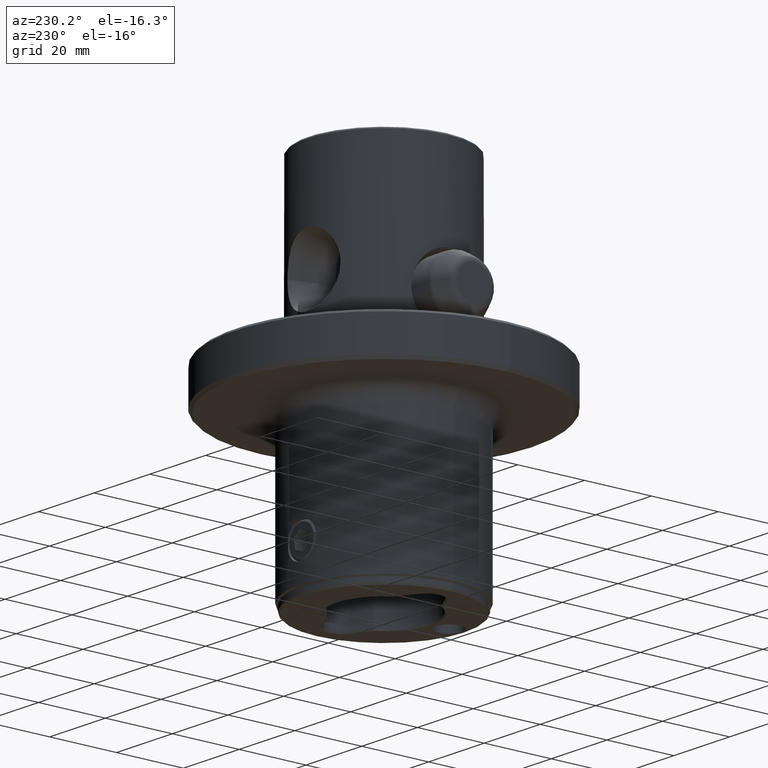
[diagram: clean part render]
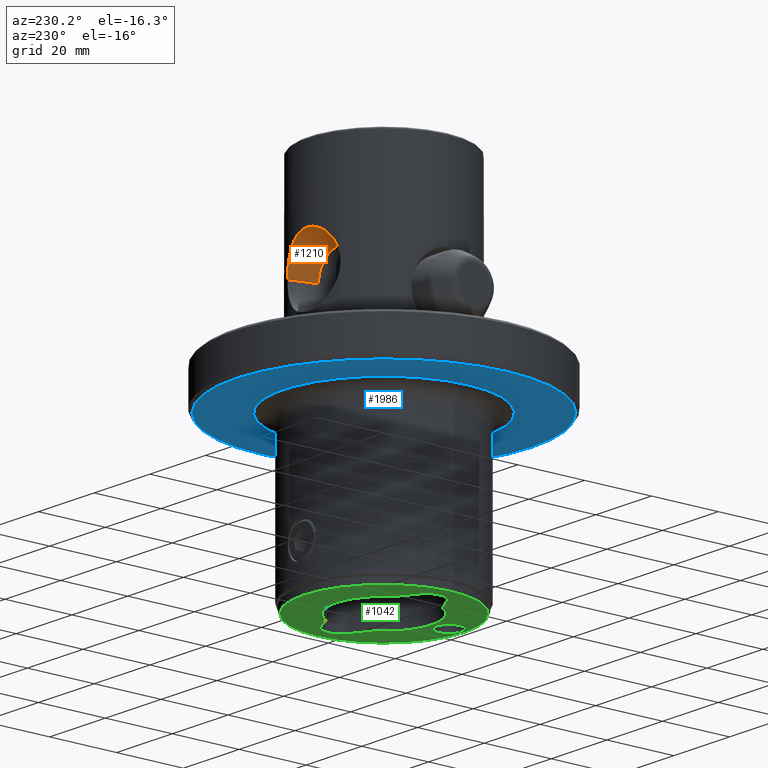
[diagram: same view with three faces highlighted in distinct colors, each labeled with its STEP entity id]
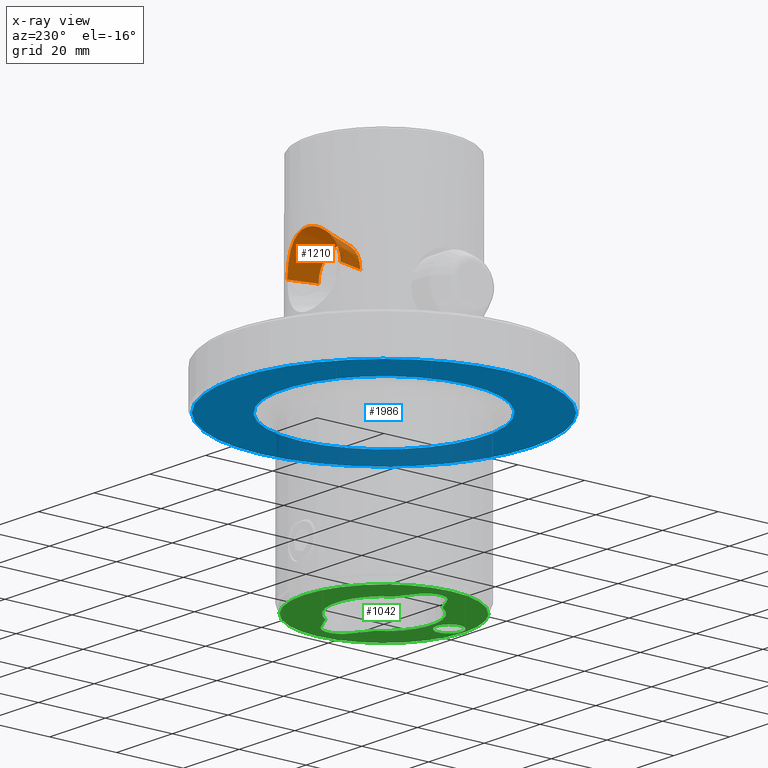
[diagram: x-ray of the same camera — body ghosted, the three highlighted faces saturated]
A machine part, auxiliary view with three faces highlighted in distinct colors.
The next image is the same camera in x-ray (body ghosted, the three faces saturated) — at least one of them is partly hidden behind the body in this view.
Their STEP definitions:

[orange] entity #1210 — the highlighted conical surface has half-angle 15 deg.
#832=EDGE_CURVE('NONE',#1472,#2162,#2392,.T.);
#1040=EDGE_CURVE('NONE',#1908,#1180,#2624,.T.);
#1180=VERTEX_POINT('NONE',#2778);
#1210=ADVANCED_FACE('NONE',(#2812),#2813,.F.);
#1350=EDGE_CURVE('NONE',#1908,#1472,#2963,.T.);
#1472=VERTEX_POINT('NONE',#3102);
#1804=EDGE_CURVE('NONE',#2162,#1180,#3486,.T.);
#1908=VERTEX_POINT('NONE',#3600);
#2162=VERTEX_POINT('NONE',#3876);
#2392=LINE('',#4134,#4135);
#2624=LINE('',#4564,#4565);
#2778=CARTESIAN_POINT('',(-9.52900098130766,20.9331827560512,18.2));
#2812=FACE_OUTER_BOUND('',#4866,.T.);
#2813=CONICAL_SURFACE('',#4867,11.9584473397443,0.261799387799143);
#2963=CIRCLE('',#5143,7.49999999999999);
#3102=CARTESIAN_POINT('',(7.49999999999999,13.3608480052036,18.2));
#3486=B_SPLINE_CURVE_WITH_KNOTS('',3,(#6012,#6013,#6014,#6015,#6016,#6017,#6018,#6019,#6020,#6021,#6022,#6023,#6024,#6025,#6026,#6027,#6028,#6029,#6030,#6031,#6032,#6033,#6034,#6035,#6036,#6037,#6038,#6039,#6040,#6041,#6042,#6043,#6044,#6045,#6046,#6047,#6048,#6049,#6050,#6051,#6052,#6053,#6054,#6055,#6056,#6057,#6058,#6059,#6060),.UNSPECIFIED.,.F.,.F.,(4,2,2,2,2,2,2,2,2,2,2,2,2,2,2,2,2,2,2,2,2,2,1,2,4),(0.038432256235785,0.0393961304792755,0.040360004722766,0.042287753209747,0.0432516274532375,0.044215501696728,0.0461432501837089,0.0471071244271994,0.0480709986706899,0.0490348729141804,0.0499987471576709,0.0519264956446518,0.0528903698881423,0.0538542441316328,0.0557819926186138,0.0567458668621043,0.0577097411055948,0.0596374895925758,0.0615652380795567,0.0634929865665377,0.0654207350535187,0.0663846092970092,0.0673484835404997,0.0683123577839901,0.0692762320274806),.UNSPECIFIED.);
#3600=CARTESIAN_POINT('',(-7.49999999999999,13.3608480052036,18.2));
#3876=CARTESIAN_POINT('',(9.52900098130766,20.9331827560512,18.2));
#4134=CARTESIAN_POINT('',(11.9584473397443,30.0,18.2));
#4135=VECTOR('',#7234,1000.0);
#4564=CARTESIAN_POINT('',(-11.9584473397443,30.0,18.2));
#4565=VECTOR('',#7527,1000.0);
#4866=EDGE_LOOP('',(#7762,#7763,#7764,#7765));
#4867=AXIS2_PLACEMENT_3D('',#7766,#7767,#7768);
#5143=AXIS2_PLACEMENT_3D('',#7922,#7923,#7924);
#6012=CARTESIAN_POINT('',(9.52900098130766,20.9331827560512,18.2));
#6013=CARTESIAN_POINT('',(9.52900098130766,20.9331827560512,18.523021912486));
#6014=CARTESIAN_POINT('',(9.5143973507356,20.9398495810759,18.8467940023031));
#6015=CARTESIAN_POINT('',(9.45514866864394,20.9666692891267,19.4958770330346));
#6016=CARTESIAN_POINT('',(9.4103327317864,20.9868955445611,19.8207142469026));
#6017=CARTESIAN_POINT('',(9.23383647188968,21.0654421006394,20.7755888764256));
#6018=CARTESIAN_POINT('',(9.06001217922808,21.1418583147805,21.3935884998345));
#6019=CARTESIAN_POINT('',(8.71515481932328,21.2852431251731,22.2936187358283));
#6020=CARTESIAN_POINT('',(8.58529204329732,21.3381391953795,22.5905923639094));
#6021=CARTESIAN_POINT('',(8.30056465382677,21.4505023301958,23.1665278014875));
#6022=CARTESIAN_POINT('',(8.14593234649985,21.5098905684617,23.445484063932));
#6023=CARTESIAN_POINT('',(7.64571322268232,21.6949186115159,24.2562986712062));
#6024=CARTESIAN_POINT('',(7.26422264806696,21.8274307226796,24.7623820690369));
#6025=CARTESIAN_POINT('',(6.61466835165081,22.0294706758058,25.4687400063865));
#6026=CARTESIAN_POINT('',(6.38675674178964,22.0968237908812,25.6933952952588));
#6027=CARTESIAN_POINT('',(5.91358471799358,22.2281308055167,26.1161138157577));
#6028=CARTESIAN_POINT('',(5.66752288909383,22.2923400742483,26.3150625618722));
#6029=CARTESIAN_POINT('',(5.1560222594097,22.4161699704658,26.6881155552423));
#6030=CARTESIAN_POINT('',(4.89058635965902,22.4757944976459,26.8622224738285));
#6031=CARTESIAN_POINT('',(4.33927621324933,22.5887107907207,27.1847180328996));
#6032=CARTESIAN_POINT('',(4.05152876431355,22.642303673219,27.3339192009342));
#6033=CARTESIAN_POINT('',(3.16955505241879,22.7883550218743,27.7337587681267));
#6034=CARTESIAN_POINT('',(2.56148919532557,22.8656266307134,27.9360635418887));
#6035=CARTESIAN_POINT('',(1.61839964617396,22.9451587402115,28.142388622104));
#6036=CARTESIAN_POINT('',(1.29883643646544,22.9656022465041,28.1948519125199));
#6037=CARTESIAN_POINT('',(0.648689135425446,22.9931525685127,28.2653875192109));
#6038=CARTESIAN_POINT('',(0.321318452824593,23.0000413121776,28.2829082999875));
#6039=CARTESIAN_POINT('',(-0.651467841542125,22.999916810533,28.2825909377002));
#6040=CARTESIAN_POINT('',(-1.29423109821104,22.9724530723112,28.2131925591272));
#6041=CARTESIAN_POINT('',(-2.24971261631084,22.8919407590923,28.0043306040548));
#6042=CARTESIAN_POINT('',(-2.56449401658918,22.8586627752685,27.9174047827039));
#6043=CARTESIAN_POINT('',(-3.17641653937835,22.7816915834389,27.7132038688996));
#6044=CARTESIAN_POINT('',(-3.47521520137169,22.7378635471341,27.5955826130132));
#6045=CARTESIAN_POINT('',(-4.35094018521888,22.5924668206106,27.1973748912731));
#6046=CARTESIAN_POINT('',(-4.91176566385718,22.4756493836206,26.8677212201833));
#6047=CARTESIAN_POINT('',(-5.94066451937262,22.2258579636504,26.1143485630644));
#6048=CARTESIAN_POINT('',(-6.41319872527364,22.092443922019,25.6898529055464));
#6049=CARTESIAN_POINT('',(-7.27811126977178,21.8227929624562,24.7451853534257));
#6050=CARTESIAN_POINT('',(-7.65866257205373,21.69029614125,24.2374800902021));
#6051=CARTESIAN_POINT('',(-8.31924253842872,21.4456117346766,23.1623260165245));
#6052=CARTESIAN_POINT('',(-8.60037874023825,21.3329757737952,22.5935875050743));
#6053=CARTESIAN_POINT('',(-8.94627485612876,21.1891424710585,21.6902165684792));
#6054=CARTESIAN_POINT('',(-9.04823901188483,21.1456456675507,21.3816554765896));
#6055=CARTESIAN_POINT('',(-9.22197996095423,21.0704543262256,20.7617939087606));
#6056=CARTESIAN_POINT('',(-9.36687505998082,21.0065080341782,20.1358475703088));
#6057=CARTESIAN_POINT('',(-9.45484935370242,20.9668041173749,19.4977324141215));
#6058=CARTESIAN_POINT('',(-9.51392378513794,20.9400645989491,18.8533871613536));
#6059=CARTESIAN_POINT('',(-9.52900098130766,20.9331827560512,18.5266777119001));
#6060=CARTESIAN_POINT('',(-9.52900098130766,20.9331827560512,18.2));
#7234=DIRECTION('',(0.258819045102515,0.96592582628907,0.0));
#7527=DIRECTION('',(-0.258819045102515,0.96592582628907,-3.1695144712278E-017));
#7762=ORIENTED_EDGE('',*,*,#1350,.F.);
#7763=ORIENTED_EDGE('',*,*,#1040,.T.);
#7764=ORIENTED_EDGE('',*,*,#1804,.F.);
#7765=ORIENTED_EDGE('',*,*,#832,.F.);
#7766=CARTESIAN_POINT('',(0.0,30.0,18.2));
#7767=DIRECTION('',(-0.0,1.0,-0.0));
#7768=DIRECTION('',(1.0,0.0,0.0));
#7922=CARTESIAN_POINT('',(0.0,13.3608480052036,18.2));
#7923=DIRECTION('',(-0.0,1.0,0.0));
#7924=DIRECTION('',(1.0,0.0,0.0));

[blue] entity #1986 — the highlighted planar face has unit normal (0, 0, 1).
#838=EDGE_CURVE('NONE',#1194,#1718,#2399,.T.);
#970=VERTEX_POINT('NONE',#2543);
#1194=VERTEX_POINT('NONE',#2792);
#1588=VERTEX_POINT('NONE',#3233);
#1598=EDGE_CURVE('NONE',#1588,#970,#3243,.T.);
#1718=VERTEX_POINT('NONE',#3385);
#1986=ADVANCED_FACE('NONE',(#3686,#3687),#3688,.F.);
#2096=EDGE_CURVE('NONE',#970,#1588,#3807,.T.);
#2152=EDGE_CURVE('NONE',#1718,#1194,#3866,.T.);
#2399=CIRCLE('',#4143,44.15);
#2543=CARTESIAN_POINT('',(-30.0,3.67381906146713E-015,-11.9));
#2792=CARTESIAN_POINT('',(-44.15,5.45868282216325E-015,-11.9));
#3233=CARTESIAN_POINT('',(30.0,0.0,-11.9));
#3243=CIRCLE('',#5586,30.0);
#3385=CARTESIAN_POINT('',(44.15,0.0,-11.9));
#3686=FACE_OUTER_BOUND('',#6344,.T.);
#3687=FACE_BOUND('',#6345,.T.);
#3688=PLANE('',#6346);
#3807=CIRCLE('',#6689,30.0);
#3866=CIRCLE('',#6823,44.15);
#4143=AXIS2_PLACEMENT_3D('',#7243,#7244,#7245);
#5586=AXIS2_PLACEMENT_3D('',#8291,#8292,#8293);
#6344=EDGE_LOOP('',(#8869,#8870));
#6345=EDGE_LOOP('',(#8871,#8872));
#6346=AXIS2_PLACEMENT_3D('',#8873,#8874,#8875);
#6689=AXIS2_PLACEMENT_3D('',#9010,#9011,#9012);
#6823=AXIS2_PLACEMENT_3D('',#9062,#9063,#9064);
#7243=CARTESIAN_POINT('',(0.0,0.0,-11.9));
#7244=DIRECTION('',(0.0,0.0,-1.0));
#7245=DIRECTION('',(1.0,0.0,0.0));
#8291=CARTESIAN_POINT('',(0.0,0.0,-11.9));
#8292=DIRECTION('',(0.0,0.0,1.0));
#8293=DIRECTION('',(1.0,0.0,0.0));
#8869=ORIENTED_EDGE('',*,*,#2152,.T.);
#8870=ORIENTED_EDGE('',*,*,#838,.T.);
#8871=ORIENTED_EDGE('',*,*,#1598,.T.);
#8872=ORIENTED_EDGE('',*,*,#2096,.T.);
#8873=CARTESIAN_POINT('',(0.0,45.15,-11.9));
#8874=DIRECTION('',(0.0,0.0,1.0));
#8875=DIRECTION('',(1.0,0.0,0.0));
#9010=CARTESIAN_POINT('',(0.0,0.0,-11.9));
#9011=DIRECTION('',(0.0,0.0,1.0));
#9012=DIRECTION('',(1.0,0.0,0.0));
#9062=CARTESIAN_POINT('',(0.0,0.0,-11.9));
#9063=DIRECTION('',(0.0,0.0,-1.0));
#9064=DIRECTION('',(1.0,0.0,0.0));

[green] entity #1042 — the highlighted planar face has unit normal (0, 0, -1).
#854=VERTEX_POINT('NONE',#2416);
#878=EDGE_CURVE('NONE',#1806,#886,#2443,.T.);
#886=VERTEX_POINT('NONE',#2451);
#912=VERTEX_POINT('NONE',#2478);
#968=VERTEX_POINT('NONE',#2541);
#1042=ADVANCED_FACE('NONE',(#2626,#2627,#2628),#2629,.T.);
#1126=VERTEX_POINT('NONE',#2722);
#1168=VERTEX_POINT('NONE',#2765);
#1172=EDGE_CURVE('NONE',#1126,#1186,#2769,.T.);
#1186=VERTEX_POINT('NONE',#2784);
#1236=EDGE_CURVE('NONE',#1382,#968,#2840,.T.);
#1246=EDGE_CURVE('NONE',#2030,#1514,#2850,.T.);
#1250=VERTEX_POINT('NONE',#2854);
#1382=VERTEX_POINT('NONE',#2997);
#1416=EDGE_CURVE('NONE',#1250,#1934,#3036,.T.);
#1514=VERTEX_POINT('',#3150);
#1634=EDGE_CURVE('NONE',#854,#1168,#3287,.T.);
#1642=EDGE_CURVE('NONE',#912,#2030,#3295,.T.);
#1736=EDGE_CURVE('NONE',#1806,#1934,#3405,.T.);
#1806=VERTEX_POINT('NONE',#3488);
#1886=EDGE_CURVE('NONE',#1186,#1126,#3575,.T.);
#1934=VERTEX_POINT('NONE',#3630);
#1966=EDGE_CURVE('NONE',#1514,#1250,#3664,.T.);
#2028=VERTEX_POINT('NONE',#3731);
#2030=VERTEX_POINT('NONE',#3733);
#2254=EDGE_CURVE('NONE',#912,#2028,#3981,.T.);
#2284=EDGE_CURVE('NONE',#968,#1382,#4016,.T.);
#2324=EDGE_CURVE('NONE',#1168,#2028,#4061,.T.);
#2326=EDGE_CURVE('NONE',#886,#854,#4063,.T.);
#2416=CARTESIAN_POINT('',(-20.0,2.22044604925031E-014,-60.0));
#2443=LINE('',#4204,#4205);
#2451=CARTESIAN_POINT('',(-17.55,-4.24352447854373,-60.0));
#2478=CARTESIAN_POINT('',(12.2287488288569,7.31575027462881,-60.0));
#2541=CARTESIAN_POINT('',(-24.0,2.98309445721789E-014,-60.0));
#2626=FACE_OUTER_BOUND('',#4567,.T.);
#2627=FACE_BOUND('',#4568,.T.);
#2628=FACE_BOUND('',#4569,.T.);
#2629=PLANE('',#4570);
#2722=CARTESIAN_POINT('',(3.75,-19.5,-60.0));
#2765=CARTESIAN_POINT('',(-17.55,4.24352447854378,-60.0));
#2769=CIRCLE('',#4769,3.75);
#2784=CARTESIAN_POINT('',(-3.75,-19.5,-60.0));
#2840=CIRCLE('',#4968,24.0);
#2850=CIRCLE('',#4983,4.9);
#2854=CARTESIAN_POINT('',(17.55,-4.24352447854377,-60.0));
#2997=CARTESIAN_POINT('',(24.0,-2.66453525910038E-014,-60.0));
#3036=LINE('',#5241,#5242);
#3150=CARTESIAN_POINT('',(20.0,-2.28045176058761E-014,-60.0));
#3287=CIRCLE('',#5638,4.9);
#3295=LINE('',#5650,#5651);
#3405=CIRCLE('',#5807,14.25);
#3488=CARTESIAN_POINT('',(-12.2287488288569,-7.31575027462887,-60.0));
#3575=CIRCLE('',#6189,3.75);
#3630=CARTESIAN_POINT('',(12.2287488288568,-7.31575027462891,-60.0));
#3664=CIRCLE('',#6310,4.9);
#3731=CARTESIAN_POINT('',(-12.2287488288569,7.31575027462881,-60.0));
#3733=CARTESIAN_POINT('',(17.55,4.24352447854375,-60.0));
#3981=CIRCLE('',#7037,14.25);
#4016=CIRCLE('',#7119,24.0);
#4061=LINE('',#7176,#7177);
#4063=CIRCLE('',#7180,4.9);
#4204=CARTESIAN_POINT('',(-7.57949192431128,-9.99999999999999,-60.0));
#4205=VECTOR('',#7300,1000.0);
#4567=EDGE_LOOP('',(#7529,#7530));
#4568=EDGE_LOOP('',(#7531,#7532,#7533,#7534,#7535,#7536,#7537,#7538,#7539,#7540));
#4569=EDGE_LOOP('',(#7541,#7542));
#4570=AXIS2_PLACEMENT_3D('',#7543,#7544,#7545);
#4769=AXIS2_PLACEMENT_3D('',#7702,#7703,#7704);
#4968=AXIS2_PLACEMENT_3D('',#7787,#7788,#7789);
#4983=AXIS2_PLACEMENT_3D('',#7792,#7793,#7794);
#5241=CARTESIAN_POINT('',(17.55,-4.24352447854377,-60.0));
#5242=VECTOR('',#8020,1000.0);
#5638=AXIS2_PLACEMENT_3D('',#8369,#8370,#8371);
#5650=CARTESIAN_POINT('',(7.57949192431114,9.99999999999999,-60.0));
#5651=VECTOR('',#8376,1000.0);
#5807=AXIS2_PLACEMENT_3D('',#8524,#8525,#8526);
#6189=AXIS2_PLACEMENT_3D('',#8729,#8730,#8731);
#6310=AXIS2_PLACEMENT_3D('',#8838,#8839,#8840);
#7037=AXIS2_PLACEMENT_3D('',#9206,#9207,#9208);
#7119=AXIS2_PLACEMENT_3D('',#9263,#9264,#9265);
#7176=CARTESIAN_POINT('',(-17.55,4.24352447854378,-60.0));
#7177=VECTOR('',#9320,1000.0);
#7180=AXIS2_PLACEMENT_3D('',#9321,#9322,#9323);
#7300=DIRECTION('',(-0.866025403784437,0.500000000000002,0.0));
#7529=ORIENTED_EDGE('',*,*,#1236,.F.);
#7530=ORIENTED_EDGE('',*,*,#2284,.F.);
#7531=ORIENTED_EDGE('',*,*,#2324,.F.);
#7532=ORIENTED_EDGE('',*,*,#1634,.F.);
#7533=ORIENTED_EDGE('',*,*,#2326,.F.);
#7534=ORIENTED_EDGE('',*,*,#878,.F.);
#7535=ORIENTED_EDGE('',*,*,#1736,.T.);
#7536=ORIENTED_EDGE('',*,*,#1416,.F.);
#7537=ORIENTED_EDGE('',*,*,#1966,.F.);
#7538=ORIENTED_EDGE('',*,*,#1246,.F.);
#7539=ORIENTED_EDGE('',*,*,#1642,.F.);
#7540=ORIENTED_EDGE('',*,*,#2254,.T.);
#7541=ORIENTED_EDGE('',*,*,#1172,.T.);
#7542=ORIENTED_EDGE('',*,*,#1886,.T.);
#7543=CARTESIAN_POINT('',(0.0,0.0,-60.0));
#7544=DIRECTION('',(0.0,0.0,-1.0));
#7545=DIRECTION('',(0.0,1.0,0.0));
#7702=CARTESIAN_POINT('',(0.0,-19.5,-60.0));
#7703=DIRECTION('',(0.0,0.0,1.0));
#7704=DIRECTION('',(1.0,0.0,0.0));
#7787=CARTESIAN_POINT('',(0.0,0.0,-60.0));
#7788=DIRECTION('',(0.0,0.0,1.0));
#7789=DIRECTION('',(1.0,-1.11022302462516E-015,-0.0));
#7792=CARTESIAN_POINT('',(15.1,-1.67643676718399E-014,-60.0));
#7793=DIRECTION('',(0.0,0.0,-1.0));
#7794=DIRECTION('',(-1.0,1.11022302462516E-015,0.0));
#8020=DIRECTION('',(-0.866025403784439,-0.5,0.0));
#8369=CARTESIAN_POINT('',(-15.1,1.67643676718399E-014,-60.0));
#8370=DIRECTION('',(0.0,0.0,-1.0));
#8371=DIRECTION('',(-1.0,1.11022302462516E-015,0.0));
#8376=DIRECTION('',(0.866025403784441,-0.499999999999996,-0.0));
#8524=CARTESIAN_POINT('',(0.0,0.0,-60.0));
#8525=DIRECTION('',(0.0,0.0,1.0));
#8526=DIRECTION('',(1.0,-1.11022302462516E-015,-0.0));
#8729=CARTESIAN_POINT('',(0.0,-19.5,-60.0));
#8730=DIRECTION('',(0.0,0.0,1.0));
#8731=DIRECTION('',(1.0,0.0,0.0));
#8838=CARTESIAN_POINT('',(15.1,-1.67643676718399E-014,-60.0));
#8839=DIRECTION('',(0.0,0.0,-1.0));
#8840=DIRECTION('',(-1.0,1.11022302462516E-015,0.0));
#9206=CARTESIAN_POINT('',(0.0,0.0,-60.0));
#9207=DIRECTION('',(0.0,0.0,1.0));
#9208=DIRECTION('',(1.0,-1.11022302462516E-015,-0.0));
#9263=CARTESIAN_POINT('',(0.0,0.0,-60.0));
#9264=DIRECTION('',(0.0,0.0,1.0));
#9265=DIRECTION('',(1.0,-1.11022302462516E-015,-0.0));
#9320=DIRECTION('',(0.866025403784442,0.499999999999994,0.0));
#9321=CARTESIAN_POINT('',(-15.1,1.67643676718399E-014,-60.0));
#9322=DIRECTION('',(0.0,0.0,-1.0));
#9323=DIRECTION('',(-1.0,1.11022302462516E-015,0.0));